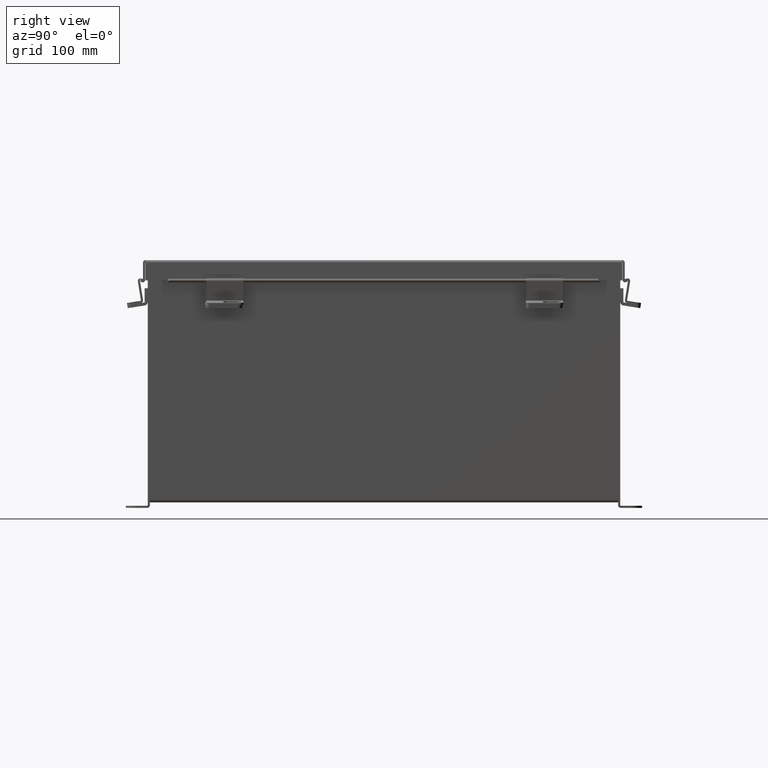
[diagram: clean part render]
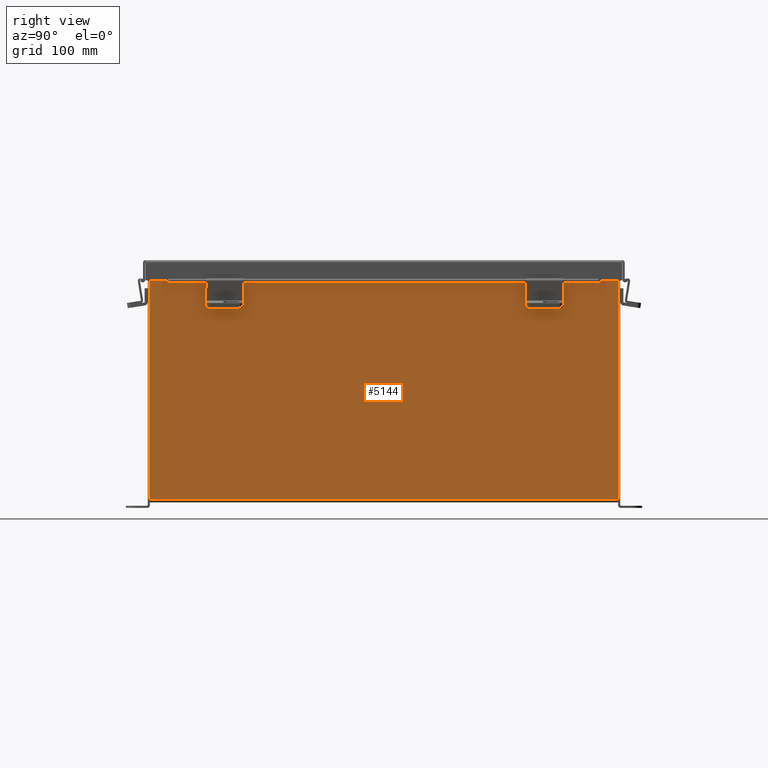
[diagram: same view with one face highlighted and labeled with its STEP entity id]
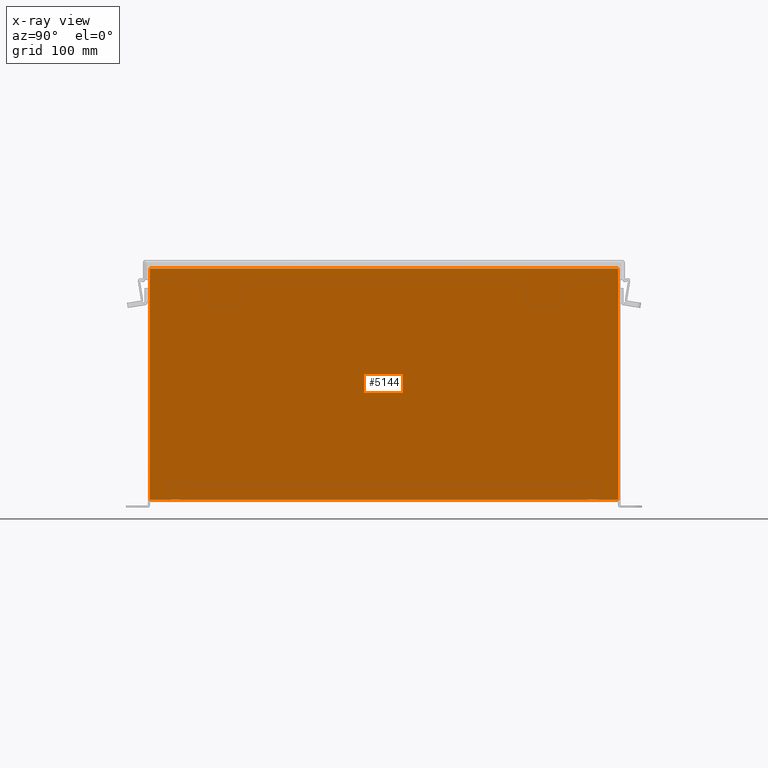
[diagram: x-ray of the same camera — body ghosted, the highlighted face saturated]
A machine part, right view. The second image highlights one B-rep face of the part: STEP entity #5144.
The next image is the same camera in x-ray: the body ghosted, the highlighted face saturated — about 0% of this face is hidden behind the body in this view.
In plain terms, the highlighted planar face has unit normal (-1, 0, 0).
Its self-contained STEP definition (entity closure, byte-faithful):
#112 = PLANE ( 'NONE',  #4939 ) ;
#780 = LINE ( 'NONE', #6914, #6331 ) ;
#790 = ORIENTED_EDGE ( 'NONE', *, *, #4715, .T. ) ;
#808 = DIRECTION ( 'NONE',  ( -1.000000000000000000, 0.0000000000000000000, 3.479795166820706300E-015 ) ) ;
#1726 = EDGE_CURVE ( 'NONE', #9336, #6200, #6527, .T. ) ;
#1787 = ORIENTED_EDGE ( 'NONE', *, *, #2883, .T. ) ;
#1855 = DIRECTION ( 'NONE',  ( -0.0000000000000000000, -1.000000000000000000, -0.0000000000000000000 ) ) ;
#2669 = ORIENTED_EDGE ( 'NONE', *, *, #4880, .T. ) ;
#2852 = DIRECTION ( 'NONE',  ( -3.479795166820706300E-015, 0.0000000000000000000, -1.000000000000000000 ) ) ;
#2883 = EDGE_CURVE ( 'NONE', #4824, #6200, #5969, .T. ) ;
#3382 = DIRECTION ( 'NONE',  ( -0.0000000000000000000, -1.000000000000000000, -0.0000000000000000000 ) ) ;
#3457 = VECTOR ( 'NONE', #3382, 39.37007874015748100 ) ;
#3674 = CARTESIAN_POINT ( 'NONE',  ( 7.000000000000026600, -7.925299999999995600, 7.837599999999999200 ) ) ;
#4394 = FACE_OUTER_BOUND ( 'NONE', #6746, .T. ) ;
#4715 = EDGE_CURVE ( 'NONE', #4959, #4824, #6310, .T. ) ;
#4824 = VERTEX_POINT ( 'NONE', #3674 ) ;
#4880 = EDGE_CURVE ( 'NONE', #9336, #4959, #780, .T. ) ;
#4939 = AXIS2_PLACEMENT_3D ( 'NONE', #6929, #808, #5456 ) ;
#4959 = VERTEX_POINT ( 'NONE', #6679 ) ;
#5144 = ADVANCED_FACE ( 'NONE', ( #4394 ), #112, .F. ) ;
#5456 = DIRECTION ( 'NONE',  ( 3.479795166820706300E-015, 0.0000000000000000000, 1.000000000000000000 ) ) ;
#5802 = CARTESIAN_POINT ( 'NONE',  ( 7.000000000000000000, -7.925299999999997300, 0.01299999999999984300 ) ) ;
#5830 = CARTESIAN_POINT ( 'NONE',  ( 7.000000000000026600, 7.925299999999997300, 7.837599999999999200 ) ) ;
#5969 = LINE ( 'NONE', #7759, #9199 ) ;
#5971 = DIRECTION ( 'NONE',  ( 3.479795166820706300E-015, -1.391918066728282600E-016, 1.000000000000000000 ) ) ;
#6200 = VERTEX_POINT ( 'NONE', #5802 ) ;
#6310 = LINE ( 'NONE', #5830, #3457 ) ;
#6331 = VECTOR ( 'NONE', #5971, 39.37007874015748100 ) ;
#6492 = ORIENTED_EDGE ( 'NONE', *, *, #1726, .F. ) ;
#6527 = LINE ( 'NONE', #7362, #9689 ) ;
#6679 = CARTESIAN_POINT ( 'NONE',  ( 7.000000000000026600, 7.925299999999996500, 7.837599999999999200 ) ) ;
#6746 = EDGE_LOOP ( 'NONE', ( #790, #1787, #6492, #2669 ) ) ;
#6914 = CARTESIAN_POINT ( 'NONE',  ( 7.000000000000000000, 7.925300000000000900, -2.351950382045326500E-014 ) ) ;
#6929 = CARTESIAN_POINT ( 'NONE',  ( 7.000000000000000000, 0.0000000000000000000, -2.462078004289917300E-014 ) ) ;
#7362 = CARTESIAN_POINT ( 'NONE',  ( 7.000000000000000000, -7.925299999999997300, 0.01299999999999984300 ) ) ;
#7759 = CARTESIAN_POINT ( 'NONE',  ( 7.000000000000000000, -7.925299999999997300, -2.462078004289917300E-014 ) ) ;
#8867 = CARTESIAN_POINT ( 'NONE',  ( 7.000000000000000000, 7.925300000000000900, 0.01299999999999984300 ) ) ;
#9199 = VECTOR ( 'NONE', #2852, 39.37007874015748100 ) ;
#9336 = VERTEX_POINT ( 'NONE', #8867 ) ;
#9689 = VECTOR ( 'NONE', #1855, 39.37007874015748100 ) ;